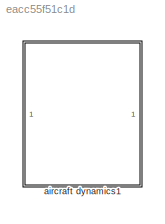
MODEL slx_eacc55f51c1d
KIND model
CONFIG AbsTol = auto
CONFIG EnableMultiTasking = off
CONFIG FixedStep = 1
CONFIG MaxStep = auto
CONFIG MinStep = auto
CONFIG RelTol = 1e-3
CONFIG SampleTimeConstraint = Unconstrained
CONFIG SolverName = FixedStepAuto
CONFIG StartTime = 0.0
CONFIG StopTime = 60*60
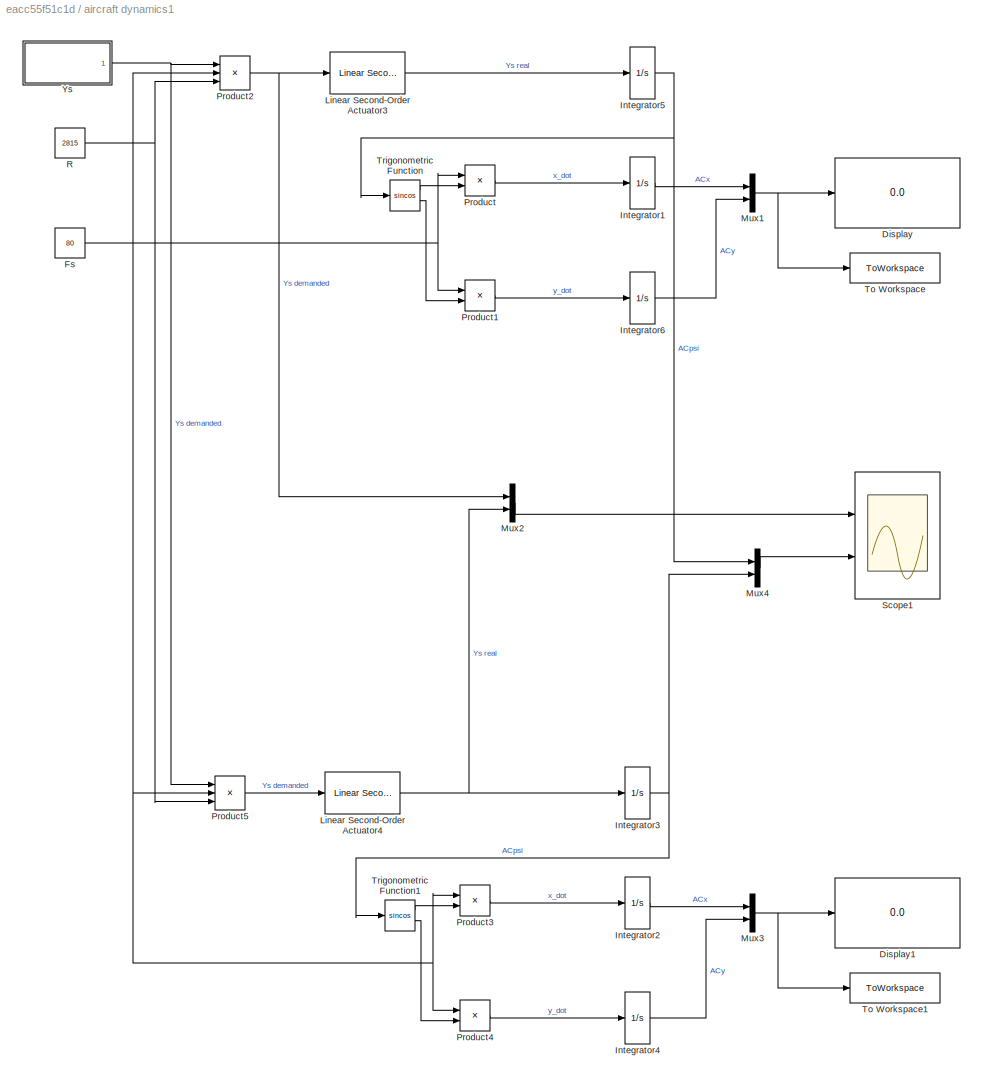
BLOCK [SubSystem] aircraft dynamics1
  Ports = []
  RequestExecContextInheritance = off
BLOCK [Display] aircraft dynamics1/Display
  Decimation = 2
  Format = long
  Ports = [1]
BLOCK [Display] aircraft dynamics1/Display1
  Decimation = 2
  Format = long
  Ports = [1]
BLOCK [Constant] aircraft dynamics1/Fs
  Value = 80
BLOCK [Integrator] aircraft dynamics1/Integrator1
  Ports = [1, 1]
BLOCK [Integrator] aircraft dynamics1/Integrator2
  Ports = [1, 1]
BLOCK [Integrator] aircraft dynamics1/Integrator3
  Ports = [1, 1]
BLOCK [Integrator] aircraft dynamics1/Integrator4
  Ports = [1, 1]
BLOCK [Integrator] aircraft dynamics1/Integrator5
  Ports = [1, 1]
BLOCK [Integrator] aircraft dynamics1/Integrator6
  Ports = [1, 1]
BLOCK [Reference] aircraft dynamics1/Linear Second-Order Actuator3  REF=aerolibactuator/Linear Second-Order Actuator
  Commented = through
  Ports = [1, 1]
  SourceBlock = aerolibactuator/Linear Second-Order Actuator
  SourceProductBaseCode = AE
  SourceType = LinearSecondOrderActuator
BLOCK [Reference] aircraft dynamics1/Linear Second-Order Actuator4  REF=aerolibactuator/Linear Second-Order Actuator
  Ports = [1, 1]
  SourceBlock = aerolibactuator/Linear Second-Order Actuator
  SourceProductBaseCode = AE
  SourceType = LinearSecondOrderActuator
BLOCK [Mux] aircraft dynamics1/Mux1
  DisplayOption = bar
  Inputs = 2
  Ports = [2, 1]
BLOCK [Mux] aircraft dynamics1/Mux2
  DisplayOption = bar
  Inputs = 2
  Ports = [2, 1]
BLOCK [Mux] aircraft dynamics1/Mux3
  DisplayOption = bar
  Inputs = 2
  Ports = [2, 1]
BLOCK [Mux] aircraft dynamics1/Mux4
  DisplayOption = bar
  Inputs = 2
  Ports = [2, 1]
BLOCK [Product] aircraft dynamics1/Product
  Ports = [2, 1]
BLOCK [Product] aircraft dynamics1/Product1
  Ports = [2, 1]
BLOCK [Product] aircraft dynamics1/Product2
  Inputs = **/
  Ports = [3, 1]
BLOCK [Product] aircraft dynamics1/Product3
  Ports = [2, 1]
BLOCK [Product] aircraft dynamics1/Product4
  Ports = [2, 1]
BLOCK [Product] aircraft dynamics1/Product5
  Inputs = **/
  Ports = [3, 1]
BLOCK [Constant] aircraft dynamics1/R
  Value = 2815
BLOCK [Scope] aircraft dynamics1/Scope1
  Floating = off
  NumInputPorts = 2
  Ports = [2]
  ScopeSpecificationString = Simulink.scopes.TimeScopeBlockCfg('CurrentConfiguration', extmgr.ConfigurationSet(extmgr.Configuration('Core','General UI',true),extmgr.Configuration('Core','Source UI',true),extmgr.Configuration('Sources','WiredSimulink',true,'DataLoggingVariableName','ScopeData2'),extmgr.Configuration('Visuals','Time Domain',true,'SerializedDisplays',{struct('MinYLimReal','-0.00355','MaxYLimReal','0.03197','YLab...<+2134ch>
BLOCK [ToWorkspace] aircraft dynamics1/To Workspace
  FixptAsFi = on
  MaxDataPoints = inf
  Ports = [1]
  SampleTime = -1
  SaveFormat = Timeseries
  VariableName = AC1pos
BLOCK [ToWorkspace] aircraft dynamics1/To Workspace1
  FixptAsFi = on
  MaxDataPoints = inf
  Ports = [1]
  SampleTime = -1
  SaveFormat = Timeseries
  VariableName = AC2pos
BLOCK [Trigonometry] aircraft dynamics1/Trigonometric Function
  Operator = sincos
  Ports = [1, 2]
BLOCK [Trigonometry] aircraft dynamics1/Trigonometric Function1
  Operator = sincos
  Ports = [1, 2]
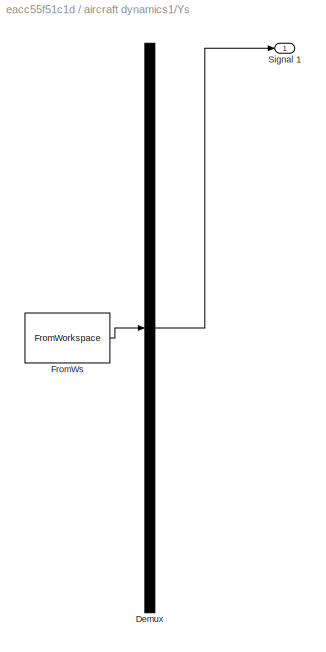
BLOCK [SubSystem] aircraft dynamics1/Ys
  ClipboardFcn = sigbuilder_block('clipboard');
  CloseFcn = sigbuilder_block('close');
  ContinueFcn = sigbuilder_block('continue');
  CopyFcn = sigbuilder_block('copy');
  DeleteFcn = sigbuilder_block('delete');
  LoadFcn = sigbuilder_block('load');
  MaskHideContents = on
  ModelCloseFcn = sigbuilder_block('modelClose');
  NameChangeFcn = sigbuilder_block('namechange');
  OpenFcn = sigbuilder_block('open',[924.6 14.4 1128.6 227.4 ]);
  PauseFcn = sigbuilder_block('pause');
  Ports = [0, 1]
  PreSaveFcn = sigbuilder_block('preSave');
  RequestExecContextInheritance = off
  StartFcn = sigbuilder_block('start');
  StopFcn = sigbuilder_block('stop');
  Tag = STV Subsys
BLOCK [Demux] aircraft dynamics1/Ys/Demux
  DisplayOption = none
  Outputs = 1
  Ports = [1, 1]
  Tag = STV Demux
BLOCK [FromWorkspace] aircraft dynamics1/Ys/FromWs
  Tag = STV FromWs
  VariableName = tuvar
BLOCK [Outport] aircraft dynamics1/Ys/Signal 1
  Tag = STV Outport
NET aircraft dynamics1/Fs:1 -> aircraft dynamics1/Product1:1, aircraft dynamics1/Product2:2, aircraft dynamics1/Product3:1, aircraft dynamics1/Product4:1, aircraft dynamics1/Product5:2, aircraft dynamics1/Product:1
LINE aircraft dynamics1/Integrator1:1 -> aircraft dynamics1/Mux1:1
LINE aircraft dynamics1/Integrator2:1 -> aircraft dynamics1/Mux3:1
NET aircraft dynamics1/Integrator3:1 -> aircraft dynamics1/Mux4:2, aircraft dynamics1/Trigonometric Function1:1
LINE aircraft dynamics1/Integrator4:1 -> aircraft dynamics1/Mux3:2
NET aircraft dynamics1/Integrator5:1 -> aircraft dynamics1/Mux4:1, aircraft dynamics1/Trigonometric Function:1
LINE aircraft dynamics1/Integrator6:1 -> aircraft dynamics1/Mux1:2
LINE aircraft dynamics1/Linear Second-Order Actuator3:1 -> aircraft dynamics1/Integrator5:1
NET aircraft dynamics1/Linear Second-Order Actuator4:1 -> aircraft dynamics1/Integrator3:1, aircraft dynamics1/Mux2:2
NET aircraft dynamics1/Mux1:1 -> aircraft dynamics1/Display:1, aircraft dynamics1/To Workspace:1
LINE aircraft dynamics1/Mux2:1 -> aircraft dynamics1/Scope1:1
NET aircraft dynamics1/Mux3:1 -> aircraft dynamics1/Display1:1, aircraft dynamics1/To Workspace1:1
LINE aircraft dynamics1/Mux4:1 -> aircraft dynamics1/Scope1:2
LINE aircraft dynamics1/Product1:1 -> aircraft dynamics1/Integrator6:1
NET aircraft dynamics1/Product2:1 -> aircraft dynamics1/Linear Second-Order Actuator3:1, aircraft dynamics1/Mux2:1
LINE aircraft dynamics1/Product3:1 -> aircraft dynamics1/Integrator2:1
LINE aircraft dynamics1/Product4:1 -> aircraft dynamics1/Integrator4:1
LINE aircraft dynamics1/Product5:1 -> aircraft dynamics1/Linear Second-Order Actuator4:1
LINE aircraft dynamics1/Product:1 -> aircraft dynamics1/Integrator1:1
NET aircraft dynamics1/R:1 -> aircraft dynamics1/Product2:3, aircraft dynamics1/Product5:3
LINE aircraft dynamics1/Trigonometric Function1:1 -> aircraft dynamics1/Product3:2
LINE aircraft dynamics1/Trigonometric Function1:2 -> aircraft dynamics1/Product4:2
LINE aircraft dynamics1/Trigonometric Function:1 -> aircraft dynamics1/Product:2
LINE aircraft dynamics1/Trigonometric Function:2 -> aircraft dynamics1/Product1:2
NET aircraft dynamics1/Ys:1 -> aircraft dynamics1/Product2:1, aircraft dynamics1/Product5:1
note: NET lines group one-source signal fan-out (src -> all destinations, sorted); 1:1 wires keep LINE
